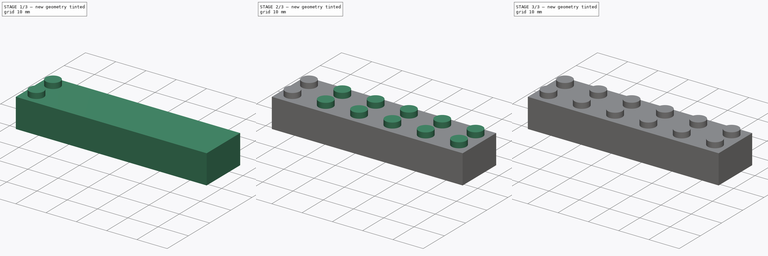
[diagram: build sequence overview — one tinted view per stage of 3, left to right]
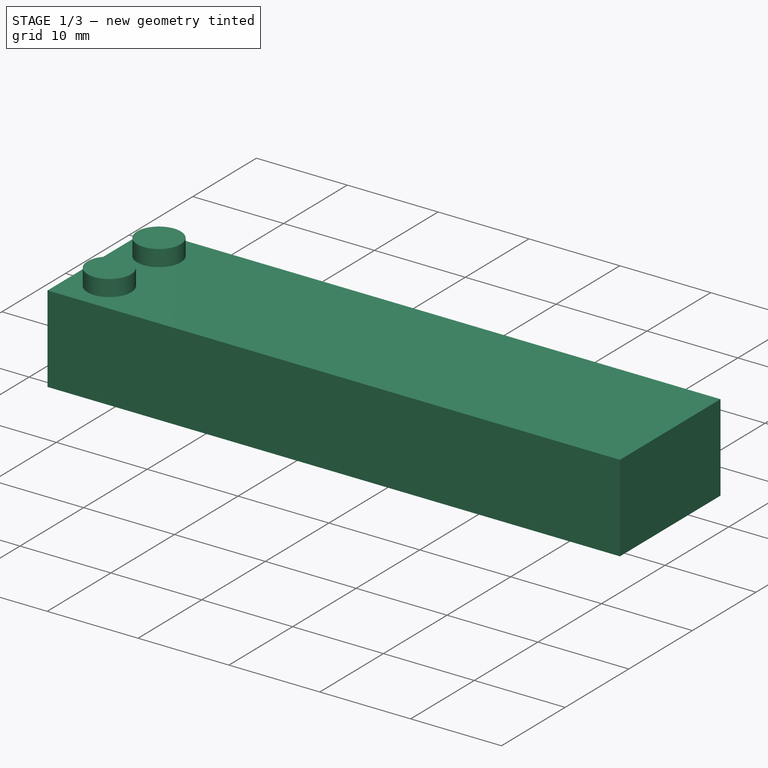
[diagram: stage 1 of 3 — iso view after this stage's code; geometry added in this stage tinted green]
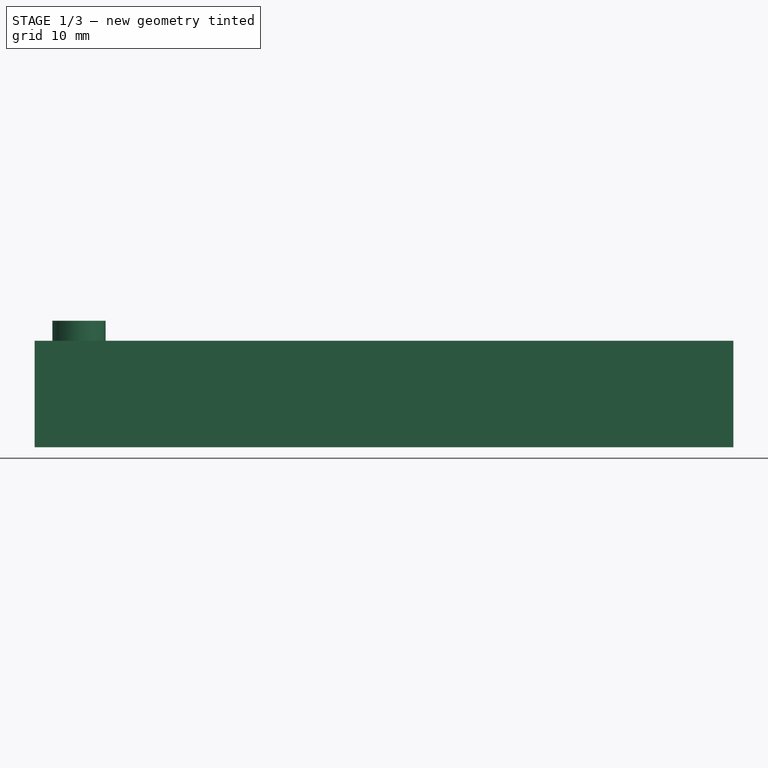
[diagram: stage 1 of 3 — front view after this stage's code; geometry added in this stage tinted green]
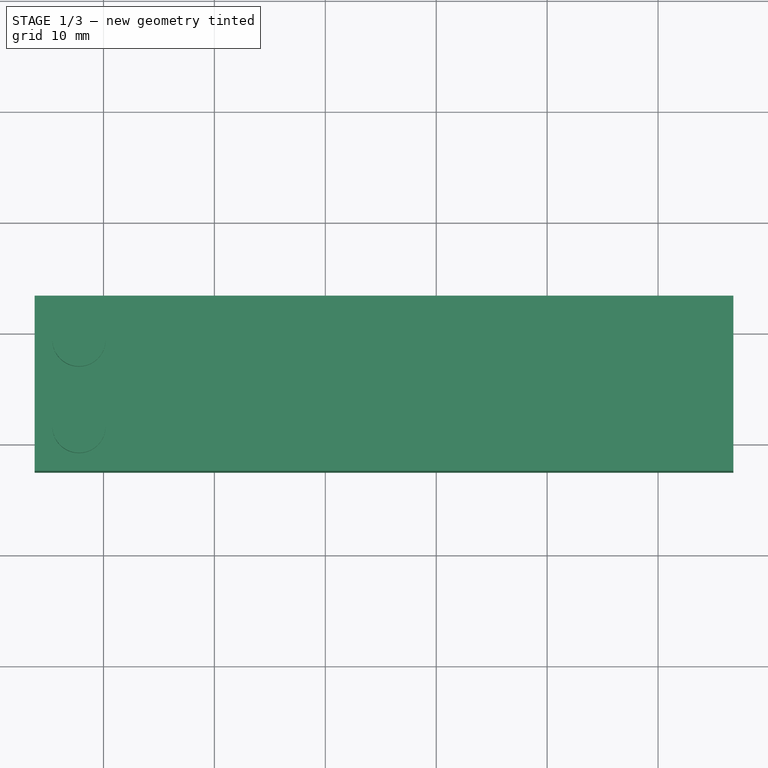
[diagram: stage 1 of 3 — top view after this stage's code; geometry added in this stage tinted green]
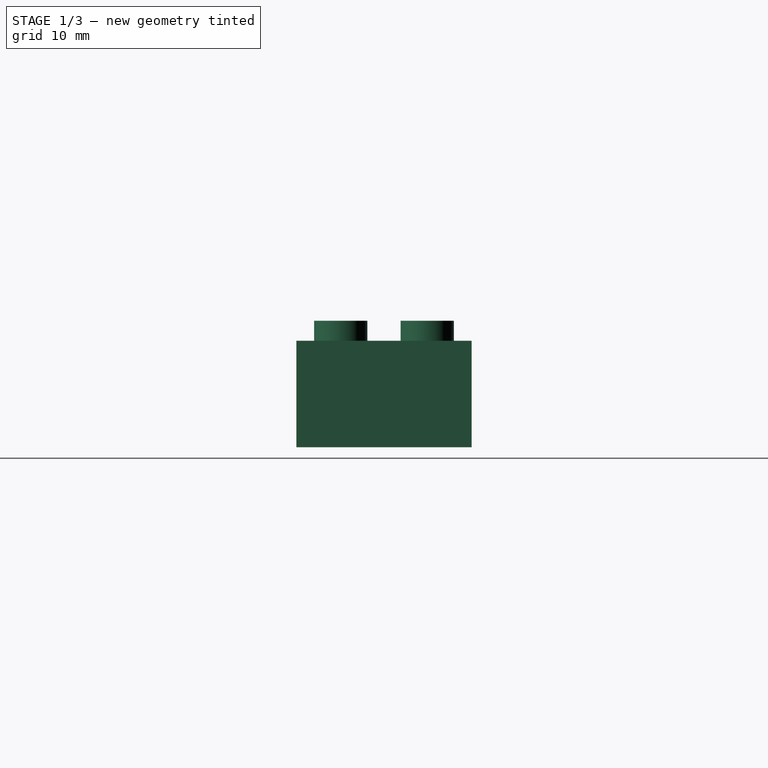
[diagram: stage 1 of 3 — right view after this stage's code; geometry added in this stage tinted green]
FCSTD DOCUMENT  (FreeCAD 0.16R6706 (Git))
Label: lego 6 hat
License: All rights reserved
LicenseURL: http://en.wikipedia.org/wiki/All_rights_reserved
objects: Sketcher::SketchObject×5, PartDesign::Pad×3, PartDesign::LinearPattern×3, PartDesign::Pocket×2
note: 18 computed .brp shape members not serialized (recipe doc carries the construction recipe); baked Part::Feature solids carry a one-line shape summary decoded from their .brp

FEATURE [Sketcher::SketchObject] Sketch
  sketch-geometry (4):
    g0: LineSegment StartX=-26.2099 StartY=3.28437 StartZ=0 EndX=36.7901 EndY=3.28437 EndZ=0
    g1: LineSegment StartX=36.7901 StartY=3.28437 StartZ=0 EndX=36.7901 EndY=-12.5156 EndZ=0
    g2: LineSegment StartX=36.7901 StartY=-12.5156 StartZ=0 EndX=-26.2099 EndY=-12.5156 EndZ=0
    g3: LineSegment StartX=-26.2099 StartY=-12.5156 StartZ=0 EndX=-26.2099 EndY=3.28437 EndZ=0
  constraints (10):
    c: Coincident(g0,g1)
    c: Coincident(g1,g2)
    c: Coincident(g2,g3)
    c: Coincident(g3,g0)
    c: Horizontal(g0)
    c: Horizontal(g2)
    c: Vertical(g1)
    c: Vertical(g3)
    c: DistanceY(g1,g1) = 15.8
    c: DistanceX(g0,g0) = 63
FEATURE [PartDesign::Pad] Pad
  Length = 9.6
  Length2 = 100
  Sketch = -> Sketch
  Type = 0
FEATURE [Sketcher::SketchObject] Sketch001
  ExternalGeometry = -> [Pad]
  Placement = pos=(0,0,0) rot=(1,0,0;3.14159rad)
  Support = -> Pad [Face5]
  sketch-geometry (4):
    g0: LineSegment StartX=-25.0099 StartY=11.3156 StartZ=0 EndX=35.5901 EndY=11.3156 EndZ=0
    g1: LineSegment StartX=35.5901 StartY=11.3156 StartZ=0 EndX=35.5901 EndY=-2.08437 EndZ=0
    g2: LineSegment StartX=35.5901 StartY=-2.08437 StartZ=0 EndX=-25.0099 EndY=-2.08437 EndZ=0
    g3: LineSegment StartX=-25.0099 StartY=-2.08437 StartZ=0 EndX=-25.0099 EndY=11.3156 EndZ=0
  constraints (12):
    c: Coincident(g0,g1)
    c: Coincident(g1,g2)
    c: Coincident(g2,g3)
    c: Coincident(g3,g0)
    c: Horizontal(g0)
    c: Horizontal(g2)
    c: Vertical(g1)
    c: Vertical(g3)
    c: DistanceX(g-5,g0) = 1.2
    c: DistanceX(g0,g-3) = 1.2
    c: DistanceY(g-4,g1) = 1.2
    c: DistanceY(g0,g-5) = 1.2
FEATURE [PartDesign::Pocket] Pocket
  Length = 8.6
  Sketch = -> Sketch001
  Type = 0
FEATURE [Sketcher::SketchObject] Sketch002
  ExternalGeometry = -> [Pocket]
  Placement = pos=(0,0,9.6) rot=(0,0,1;0rad)
  Support = -> Pocket [Face5]
  sketch-geometry (2):
    g0: Circle CenterX=-22.2099 CenterY=-0.715627 CenterZ=0 NormalX=0 NormalY=0 NormalZ=1 Radius=2.4
    g1: Circle CenterX=-22.2099 CenterY=-8.51563 CenterZ=0 NormalX=0 NormalY=0 NormalZ=1 Radius=2.4
  constraints (6):
    c: Radius(g0) = 2.4
    c: Radius(g1) = 2.4
    c: DistanceX(g-3,g0) = 4
    c: DistanceX(g-3,g1) = 4
    c: DistanceY(g0,g-5) = 4
    c: DistanceY(g-4,g1) = 4
FEATURE [PartDesign::Pad] Pad001
  Length = 1.8
  Length2 = 100
  Sketch = -> Sketch002
  Type = 0
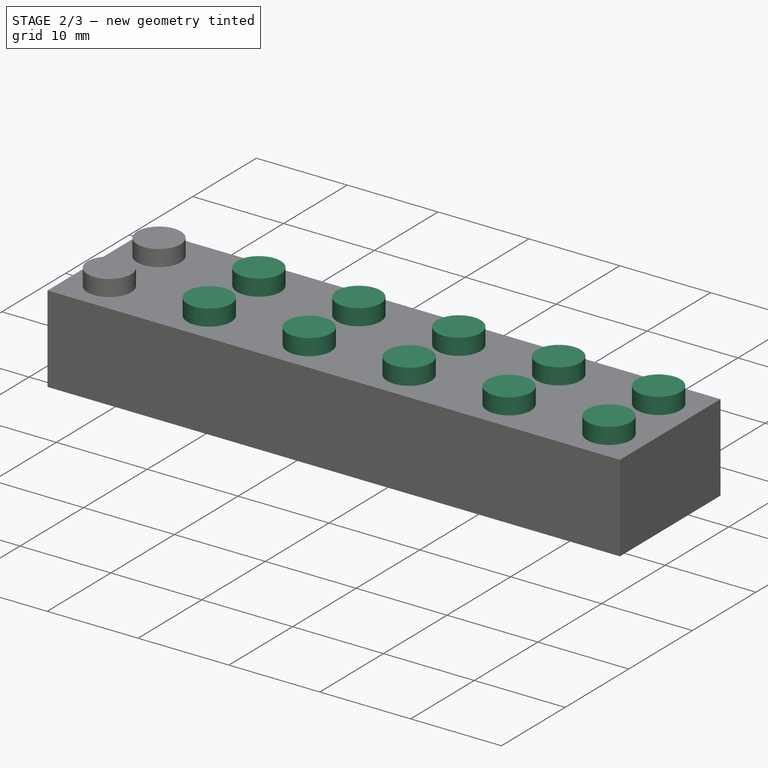
[diagram: stage 2 of 3 — iso view after this stage's code; geometry added in this stage tinted green]
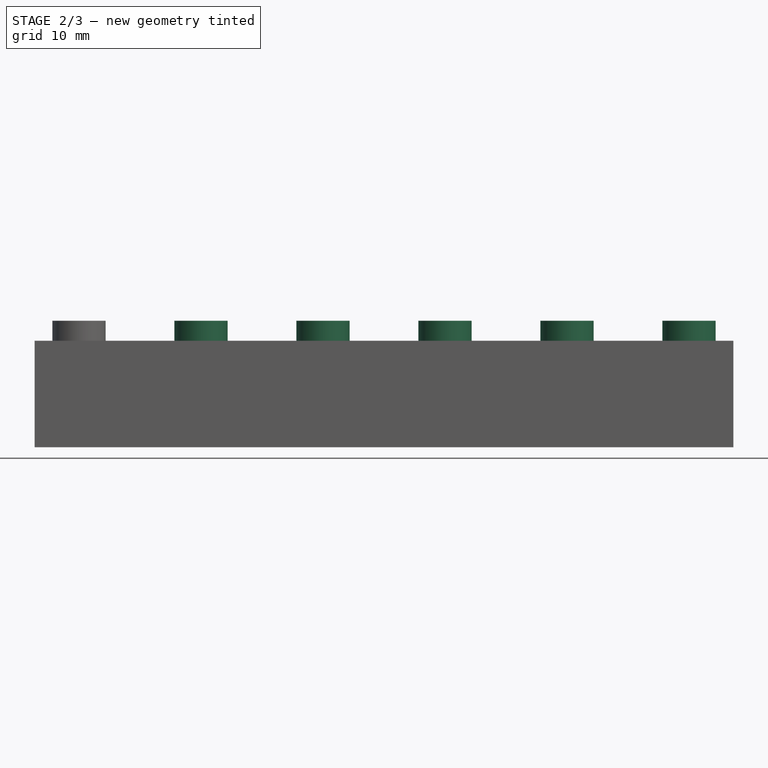
[diagram: stage 2 of 3 — front view after this stage's code; geometry added in this stage tinted green]
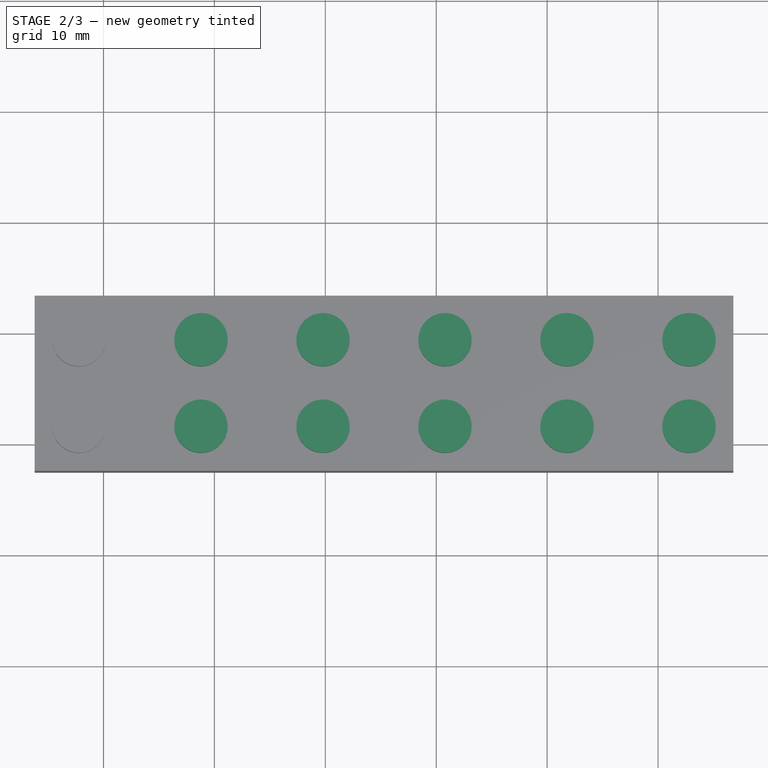
[diagram: stage 2 of 3 — top view after this stage's code; geometry added in this stage tinted green]
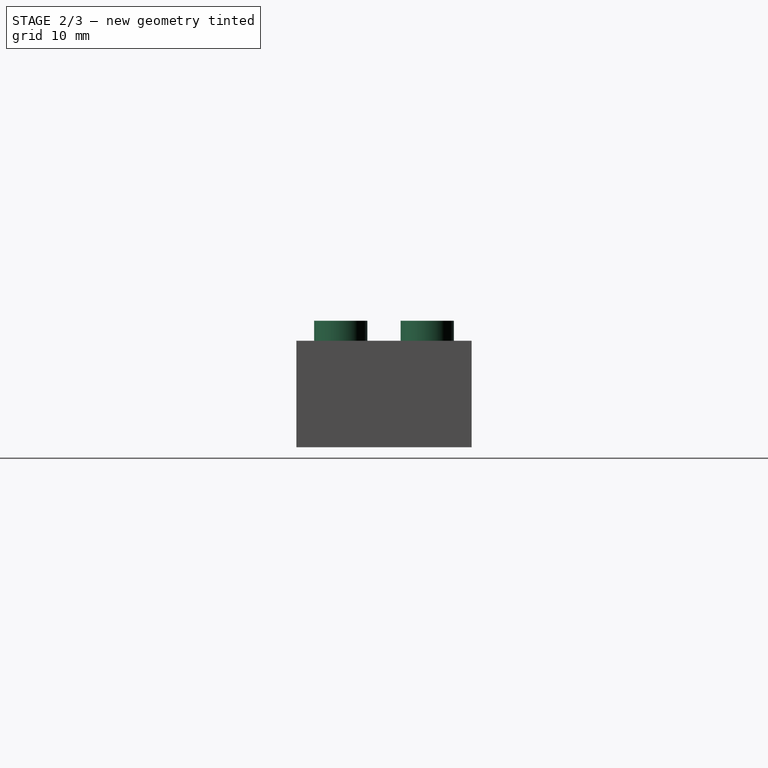
[diagram: stage 2 of 3 — right view after this stage's code; geometry added in this stage tinted green]
FEATURE [PartDesign::LinearPattern] LinearPattern
  Direction = -> Sketch002 [H_Axis]
  Length = 55
  Occurrences = 6
  Originals = -> [Pad001]
FEATURE [Sketcher::SketchObject] Sketch003
  ExternalGeometry = -> [LinearPattern]
  Placement = pos=(0,0,8.6) rot=(1,0,0;3.14159rad)
  Support = -> LinearPattern [Face23]
  sketch-geometry (1):
    g0: Circle CenterX=-18.2099 CenterY=4.71563 CenterZ=0 NormalX=0 NormalY=0 NormalZ=1 Radius=3.255
  constraints (3):
    c: Radius(g0) = 3.255
    c: Distance(g0,g-4) = 6.8
    c: Distance(g0,g-3) = 6.8
FEATURE [PartDesign::Pad] Pad002
  Length = 8.6
  Length2 = 100
  Sketch = -> Sketch003
  Type = 0
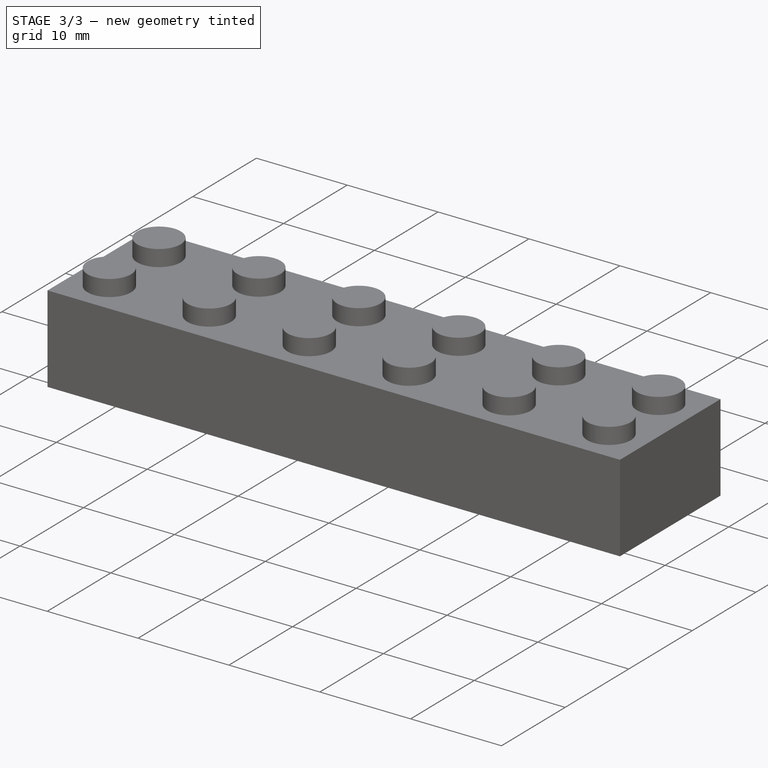
[diagram: stage 3 of 3 — iso view after this stage's code; geometry added in this stage tinted green]
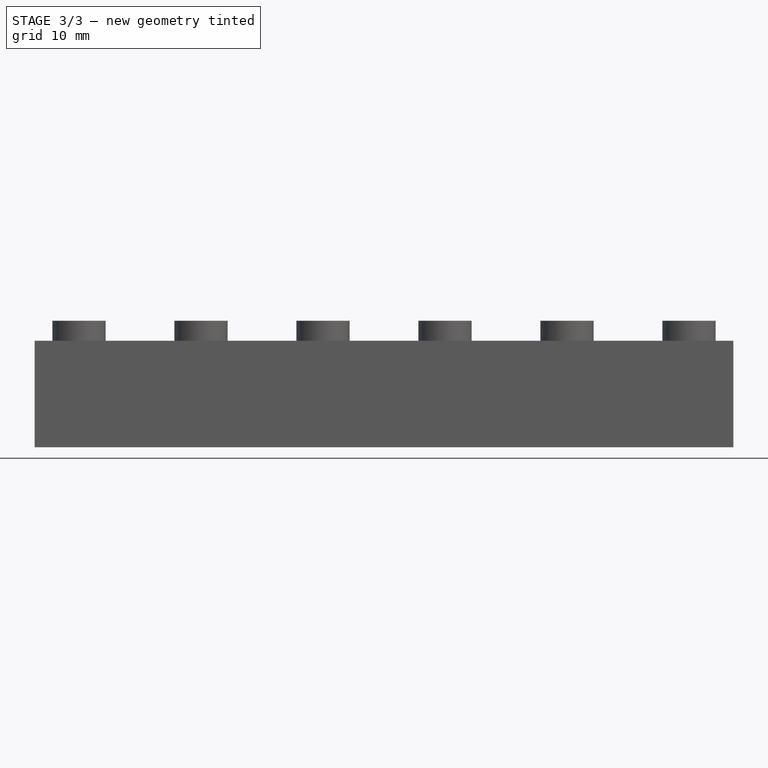
[diagram: stage 3 of 3 — front view after this stage's code; geometry added in this stage tinted green]
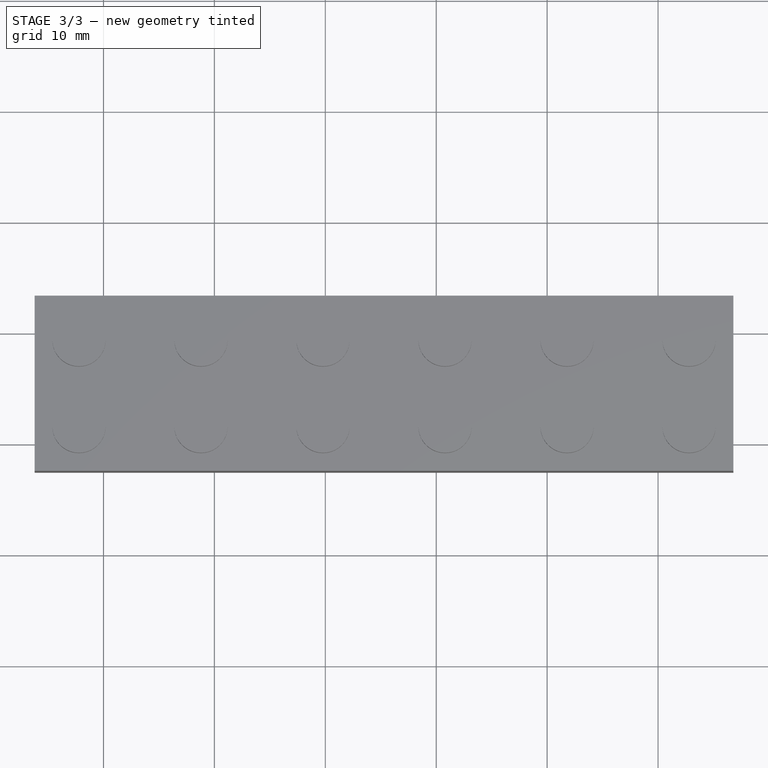
[diagram: stage 3 of 3 — top view after this stage's code; geometry added in this stage tinted green]
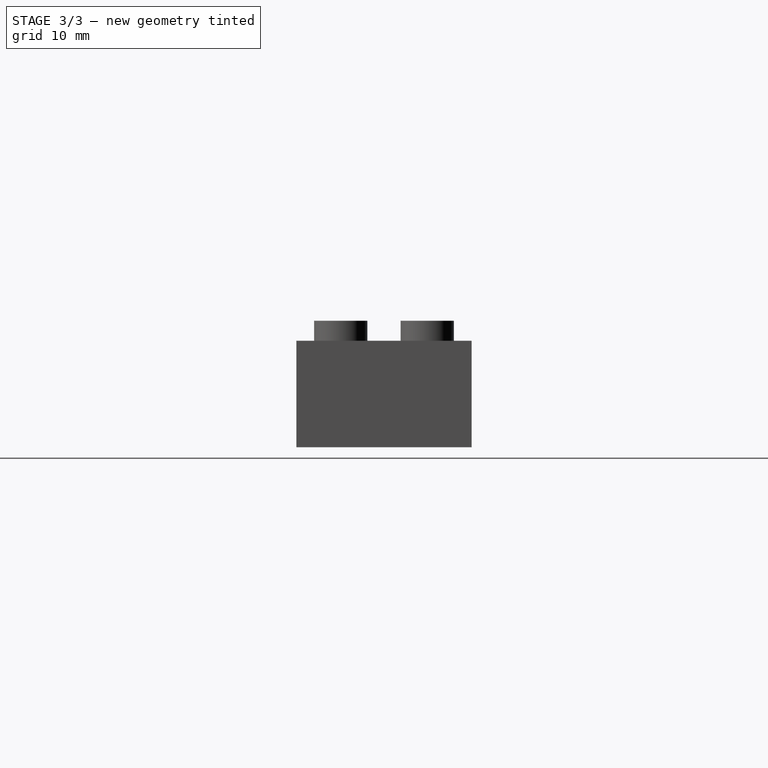
[diagram: stage 3 of 3 — right view after this stage's code; geometry added in this stage tinted green]
FEATURE [PartDesign::LinearPattern] LinearPattern001
  Direction = -> Sketch003 [H_Axis]
  Length = 47
  Occurrences = 6
  Originals = -> [Pad002]
FEATURE [Sketcher::SketchObject] Sketch004
  ExternalGeometry = -> [LinearPattern001]
  Placement = pos=(0,0,0) rot=(1,0,0;3.14159rad)
  Support = -> LinearPattern001 [Face47]
  sketch-geometry (1):
    g0: Circle CenterX=-18.2099 CenterY=4.71563 CenterZ=0 NormalX=0 NormalY=0 NormalZ=1 Radius=2.4
  constraints (2):
    c: Radius(g0) = 2.4
    c: Coincident(g0,g-3)
FEATURE [PartDesign::Pocket] Pocket001
  Length = 8.6
  Sketch = -> Sketch004
  Type = 0
FEATURE [PartDesign::LinearPattern] LinearPattern002
  Direction = -> Sketch004 [H_Axis]
  Length = 47
  Occurrences = 6
  Originals = -> [Pocket001]
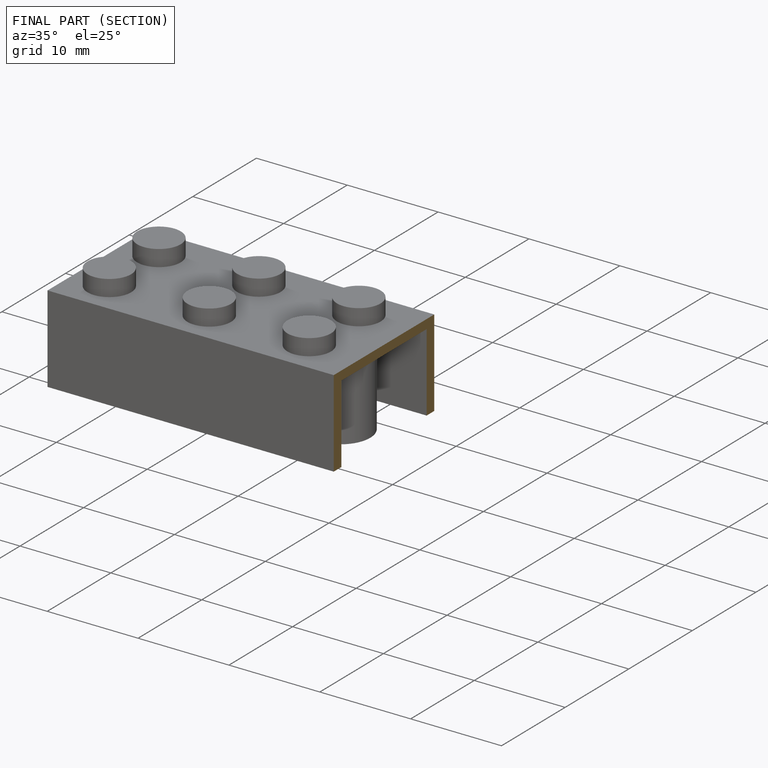
[diagram: finished part — half-section view (interior)]
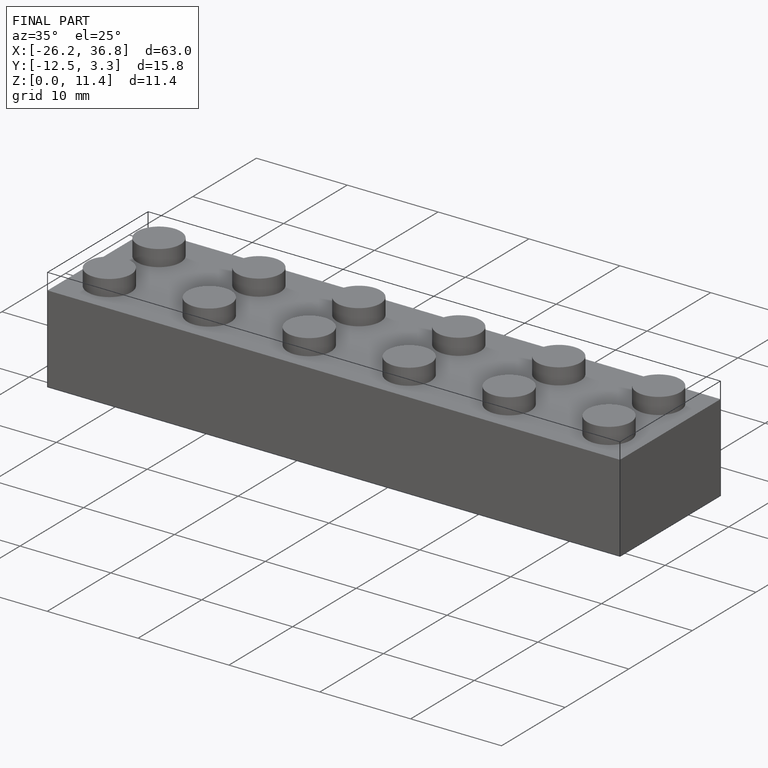
[diagram: finished part — iso view with bounding-box wireframe]
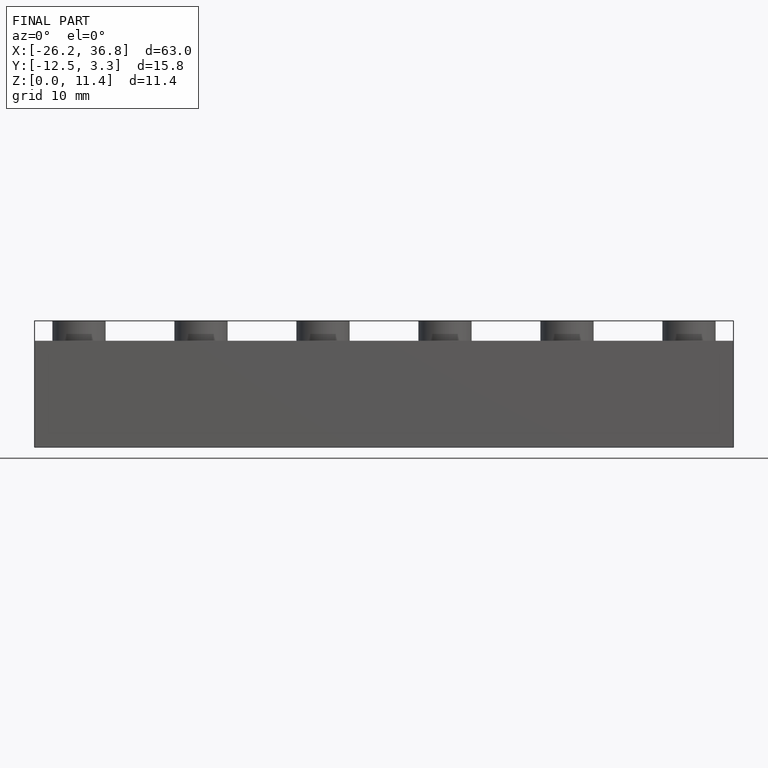
[diagram: finished part — front view with bounding-box wireframe]
